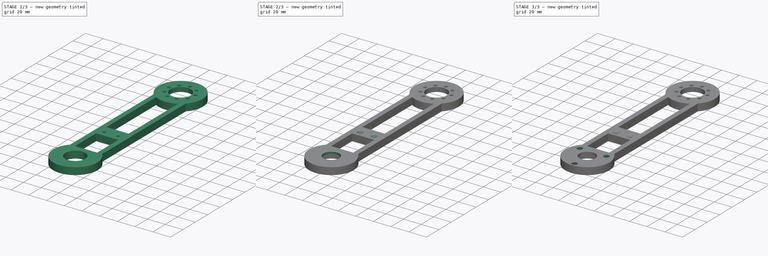
[diagram: build sequence overview — one tinted view per stage of 3, left to right]
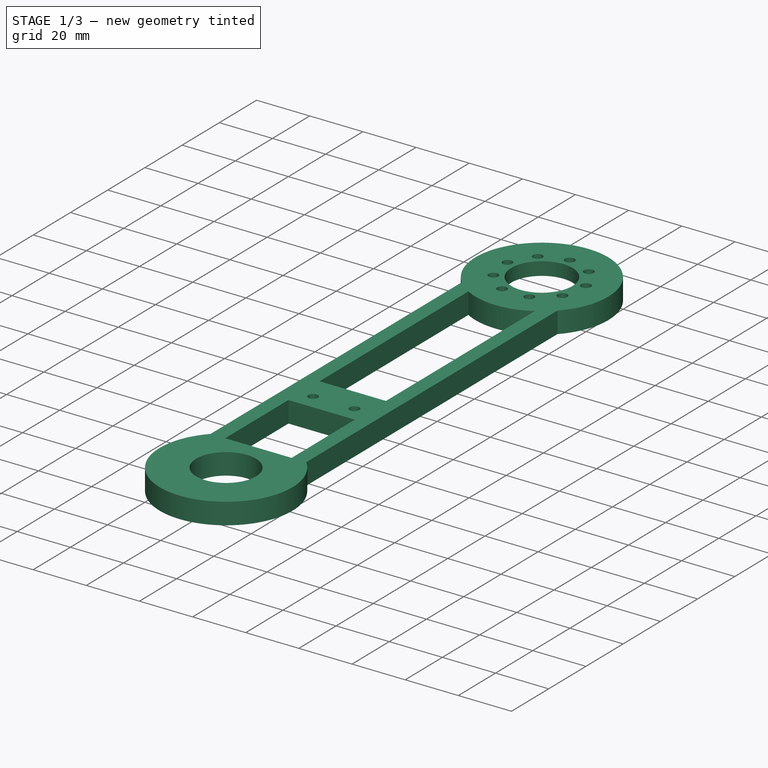
[diagram: stage 1 of 3 — iso view after this stage's code; geometry added in this stage tinted green]
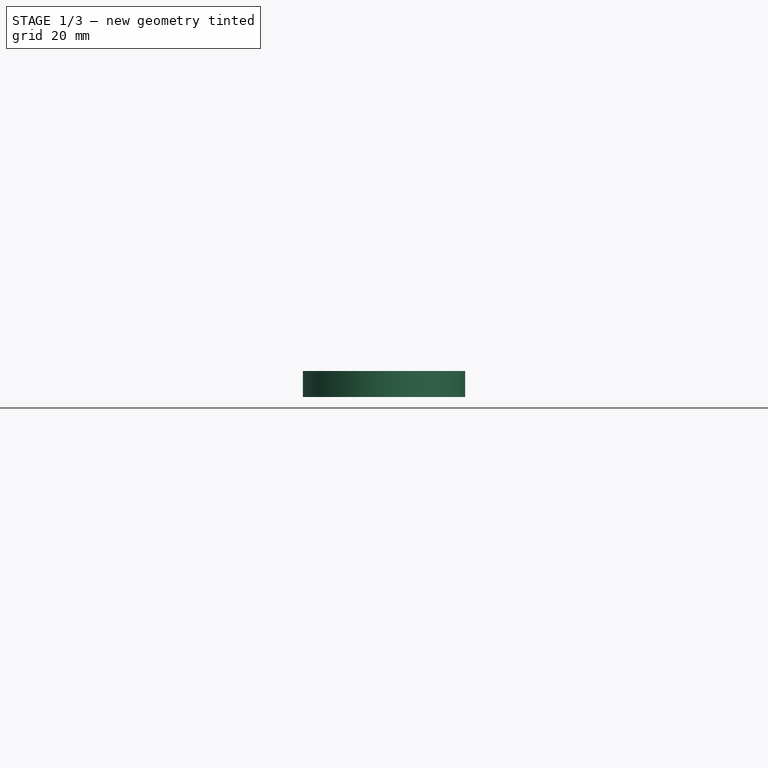
[diagram: stage 1 of 3 — front view after this stage's code; geometry added in this stage tinted green]
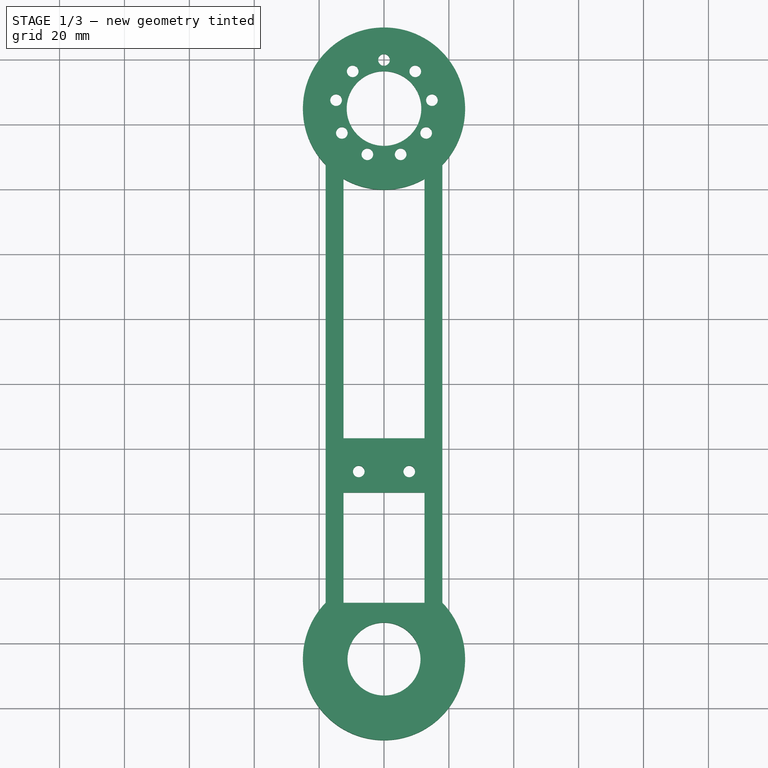
[diagram: stage 1 of 3 — top view after this stage's code; geometry added in this stage tinted green]
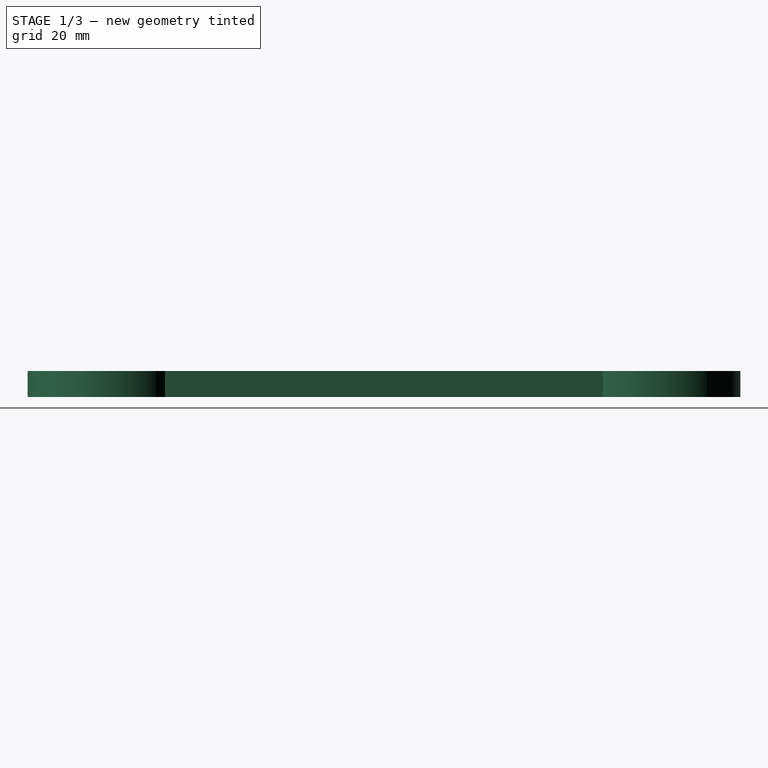
[diagram: stage 1 of 3 — right view after this stage's code; geometry added in this stage tinted green]
FCSTD DOCUMENT  (FreeCAD 1.0R38641 +678 (Git))
Label: pendulum_Arm
License: All rights reserved
LicenseURL: https://en.wikipedia.org/wiki/All_rights_reserved
objects: Sketcher::SketchObject×5, PartDesign::Pocket×3, PartDesign::CoordinateSystem×3, PartDesign::Pad×2, App::Part×1, PartDesign::Chamfer×1, PartDesign::Body×1
note: 32 computed .brp shape members not serialized (recipe doc carries the construction recipe); baked Part::Feature solids carry a one-line shape summary decoded from their .brp

FEATURE [App::Part] Part
  Origin = -> Origin
FEATURE [Sketcher::SketchObject] Sketch006
  ArcFitTolerance = 1e-06
  AttachmentSupport = -> [XY_Plane004]
  FullyConstrained = true
  MakeInternals = false
  MapMode = 5
  sketch-geometry (1):
    g0: Circle CenterX=0 CenterY=84.85 CenterZ=0 NormalX=0 NormalY=0 NormalZ=1 AngleXU=0 Radius=23
  constraints (3):
    c: PointOnObject(g0,g-2)
    c: DistanceY(g-1,g0) = 84.85
    c: Diameter(g0) = 46
FEATURE [Sketcher::SketchObject] Sketch007
  ArcFitTolerance = 1e-06
  AttachmentSupport = -> [XY_Plane004]
  FullyConstrained = true
  MakeInternals = false
  MapMode = 5
  sketch-geometry (33):
    g0: LineSegment StartX=-18 StartY=67.5 StartZ=0 EndX=-18 EndY=-67.5 EndZ=0
    g1: LineSegment StartX=18 StartY=-67.5 StartZ=0 EndX=18 EndY=67.5 EndZ=0
    g2: ArcOfCircle CenterX=0 CenterY=84.8494 CenterZ=0 NormalX=0 NormalY=0 NormalZ=1 AngleXU=0 Radius=25 StartAngle=5.51619 EndAngle=10.1918
    g3: Circle CenterX=0 CenterY=84.8494 CenterZ=0 NormalX=0 NormalY=0 NormalZ=1 AngleXU=0 Radius=11.5
    g4: Circle CenterX=0 CenterY=99.8494 CenterZ=0 NormalX=0 NormalY=0 NormalZ=1 AngleXU=0 Radius=1.8
    g5: Circle CenterX=9.64181 CenterY=96.34 CenterZ=0 NormalX=0 NormalY=0 NormalZ=1 AngleXU=0 Radius=1.8
    g6: Circle CenterX=14.7721 CenterY=87.4541 CenterZ=0 NormalX=0 NormalY=0 NormalZ=1 AngleXU=0 Radius=1.8
    g7: Circle CenterX=12.9904 CenterY=77.3494 CenterZ=0 NormalX=0 NormalY=0 NormalZ=1 AngleXU=0 Radius=1.8
    g8: Circle CenterX=5.1303 CenterY=70.754 CenterZ=0 NormalX=0 NormalY=0 NormalZ=1 AngleXU=0 Radius=1.8
    g9: Circle CenterX=-5.1303 CenterY=70.754 CenterZ=0 NormalX=0 NormalY=0 NormalZ=1 AngleXU=0 Radius=1.8
    g10: Circle CenterX=-12.9904 CenterY=77.3494 CenterZ=0 NormalX=0 NormalY=0 NormalZ=1 AngleXU=0 Radius=1.8
    g11: Circle CenterX=-14.7721 CenterY=87.4541 CenterZ=0 NormalX=0 NormalY=0 NormalZ=1 AngleXU=0 Radius=1.8
    g12: Circle CenterX=-9.64181 CenterY=96.34 CenterZ=0 NormalX=0 NormalY=0 NormalZ=1 AngleXU=0 Radius=1.8
    g13: LineSegment [constr] StartX=-9.64181 StartY=96.34 StartZ=0 EndX=0 EndY=84.8494 EndZ=0
    g14: LineSegment [constr] StartX=-14.7721 StartY=87.4541 StartZ=0 EndX=0 EndY=84.8494 EndZ=0
    g15: LineSegment [constr] StartX=-12.9904 StartY=77.3494 StartZ=0 EndX=0 EndY=84.8494 EndZ=0
    g16: LineSegment [constr] StartX=-5.1303 StartY=70.754 StartZ=0 EndX=0 EndY=84.8494 EndZ=0
    g17: LineSegment [constr] StartX=5.1303 StartY=70.754 StartZ=0 EndX=0 EndY=84.8494 EndZ=0
    g18: LineSegment [constr] StartX=12.9904 StartY=77.3494 StartZ=0 EndX=0 EndY=84.8494 EndZ=0
    g19: LineSegment [constr] StartX=14.7721 StartY=87.4541 StartZ=0 EndX=0 EndY=84.8494 EndZ=0
    g20: LineSegment [constr] StartX=9.64181 StartY=96.34 StartZ=0 EndX=0 EndY=84.8494 EndZ=0
    g21: Circle CenterX=-7.78 CenterY=-27 CenterZ=0 NormalX=0 NormalY=0 NormalZ=1 AngleXU=0 Radius=1.8
    g22: Circle CenterX=7.78 CenterY=-27 CenterZ=0 NormalX=0 NormalY=0 NormalZ=1 AngleXU=0 Radius=1.8
    g23: ArcOfCircle CenterX=0 CenterY=-84.8494 CenterZ=0 NormalX=0 NormalY=0 NormalZ=1 AngleXU=0 Radius=25 StartAngle=2.3746 EndAngle=7.05018
    g24: Circle CenterX=0 CenterY=-84.8494 CenterZ=0 NormalX=0 NormalY=0 NormalZ=1 AngleXU=0 Radius=11.25
    g25: LineSegment StartX=-12.5 StartY=63.1987 StartZ=0 EndX=-12.5 EndY=-16.8013 EndZ=0
    g26: LineSegment StartX=-12.5 StartY=-16.8013 StartZ=0 EndX=12.5 EndY=-16.8013 EndZ=0
    g27: LineSegment StartX=12.5 StartY=-16.8013 StartZ=0 EndX=12.5 EndY=63.1987 EndZ=0
    g28: LineSegment StartX=-12.5 StartY=-33.5 StartZ=0 EndX=-12.5 EndY=-67.5 EndZ=0
    g29: LineSegment StartX=-12.5 StartY=-67.5 StartZ=0 EndX=12.5 EndY=-67.5 EndZ=0
    g30: LineSegment StartX=12.5 StartY=-67.5 StartZ=0 EndX=12.5 EndY=-33.5 EndZ=0
    g31: LineSegment StartX=12.5 StartY=-33.5 StartZ=0 EndX=-12.5 EndY=-33.5 EndZ=0
    g32: ArcOfCircle CenterX=0 CenterY=84.8494 CenterZ=0 NormalX=0 NormalY=0 NormalZ=1 AngleXU=0 Radius=25 StartAngle=4.18879 EndAngle=5.23599
  constraints (88):
    c: Vertical(g0)
    c: Vertical(g1)
    c: Symmetric(g0,g1,g-1)
    c: DistanceX(g0,g1) = 36
    c: DistanceY(g1,g1) = 135
    c: PointOnObject(g2,g-2)
    c: Diameter(g2) = 50
    c: Coincident(g2,g0)
    c: Coincident(g2,g1)
    c: Coincident(g3,g2)
    c: Diameter(g3) = 23
    c: PointOnObject(g4,g-2)
    c: Coincident(g13,g12)
    c: Coincident(g13,g2)
    c: Coincident(g14,g11)
    c: Coincident(g14,g2)
    c: Coincident(g15,g10)
    c: Coincident(g15,g2)
    c: Coincident(g16,g9)
    c: Coincident(g16,g2)
    c: Coincident(g17,g8)
    c: Coincident(g17,g2)
    c: Coincident(g18,g7)
    c: Coincident(g18,g2)
    c: Coincident(g19,g6)
    c: Coincident(g19,g2)
    c: Coincident(g20,g5)
    c: Coincident(g20,g2)
    c: Equal(g4,g5)
    c: Equal(g5,g6)
    c: Equal(g6,g7)
    c: Equal(g7,g8)
    c: Equal(g8,g9)
    c: Equal(g9,g10)
    c: Equal(g10,g11)
    c: Equal(g11,g12)
    c: Equal(g13,g14)
    c: Equal(g14,g15)
    c: Equal(g15,g16)
    c: Equal(g16,g17)
    c: Equal(g17,g18)
    c: Equal(g18,g19)
    c: Equal(g19,g20)
    c: DistanceY(g2,g4) = 15
    c: Distance(g13) = 15
    c: Diameter(g4) = 3.6
    c: Angle(g-2,g20) = 2.44346
    c: Angle(g19,g20) = 0.698132
    c: Angle(g18,g19) = 0.698132
    c: Angle(g17,g18) = 0.698132
    c: Angle(g16,g17) = 0.698132
    c: Angle(g15,g16) = 0.698132
    c: Angle(g14,g15) = 0.698132
    c: Angle(g13,g14) = 0.698132
    c: Equal(g22,g21)
    c: Diameter(g21) = 3.6
    c: DistanceX(g21,g22) = 15.56
    c: Symmetric(g21,g22,g-2)
    c: DistanceY(g22,g-1) = 27
    c: PointOnObject(g23,g-2)
    c: Diameter(g23) = 50
    c: Coincident(g23,g1)
    c: Coincident(g23,g0)
    c: Coincident(g24,g23)
    c: Diameter(g24) = 22.5
    c: Vertical(g25)
    c: Vertical(g27)
    c: Horizontal(g26)
    c: Coincident(g28,g29)
    c: Coincident(g29,g30)
    c: Coincident(g30,g31)
    c: Coincident(g31,g28)
    c: Vertical(g28)
    c: Vertical(g30)
    c: Horizontal(g29)
    c: Symmetric(g27,g25,g-2)
    c: DistanceY(g25,g25) = 80
    c: DistanceX(g25,g27) = 25
    c: PointOnObject(g1,g29)
    c: Symmetric(g28,g30,g-2)
    c: DistanceX(g31,g31) = 25
    c: DistanceY(g28,g28) = 34
    c: Diameter(g32) = 50
    c: Coincident(g32,g25)
    c: Coincident(g32,g27)
    c: Coincident(g32,g2)
    c: Coincident(g26,g25)
    c: Coincident(g27,g26)
FEATURE [PartDesign::Pad] Pad004  label="Pad_Arm"
  Direction = (0,0,1)
  Length = 8
  Length2 = 10
  Profile = -> Sketch007
  ReferenceAxis = -> Sketch007 [N_Axis]
  Refine = true
  Suppressed = false
  Type = 0
FEATURE [PartDesign::Pocket] Pocket001  label="Pocket_Motor"
  BaseFeature = -> Pad004
  Direction = (0,0,-1)
  Length = 3
  Length2 = 5
  Profile = -> Sketch006
  ReferenceAxis = -> Sketch006 [N_Axis]
  Refine = true
  Reversed = true
  Suppressed = false
  Type = 0
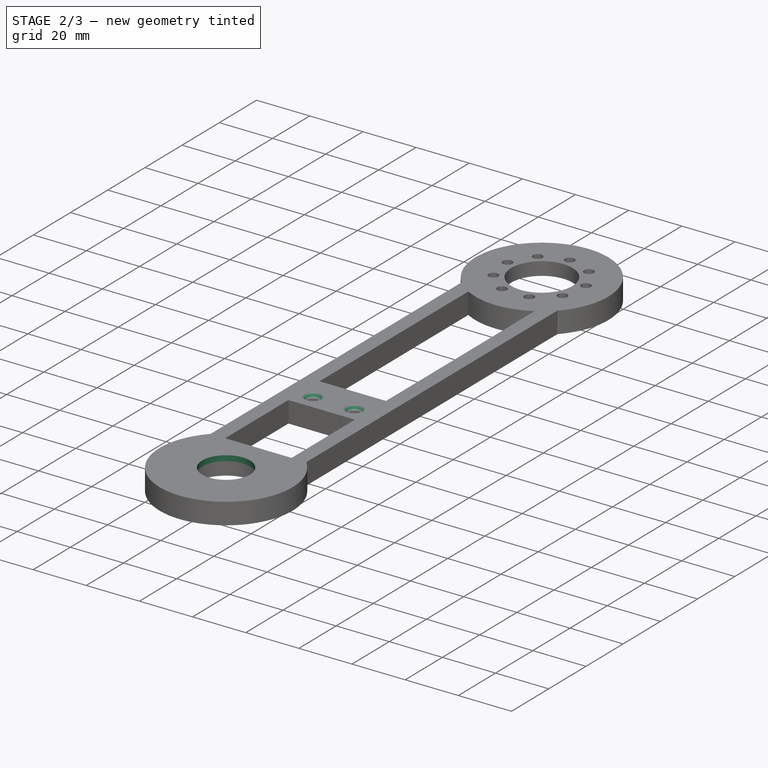
[diagram: stage 2 of 3 — iso view after this stage's code; geometry added in this stage tinted green]
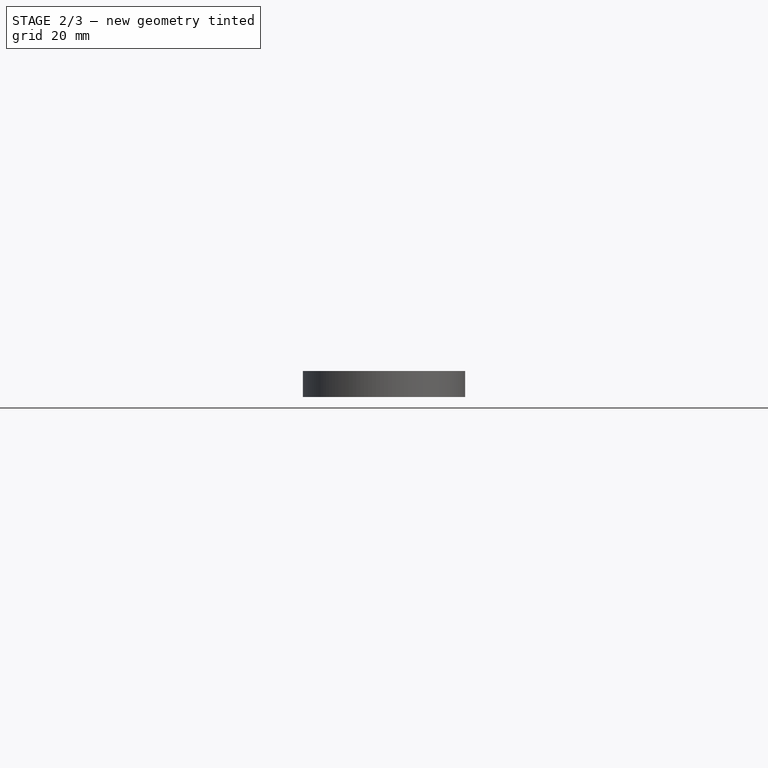
[diagram: stage 2 of 3 — front view after this stage's code; geometry added in this stage tinted green]
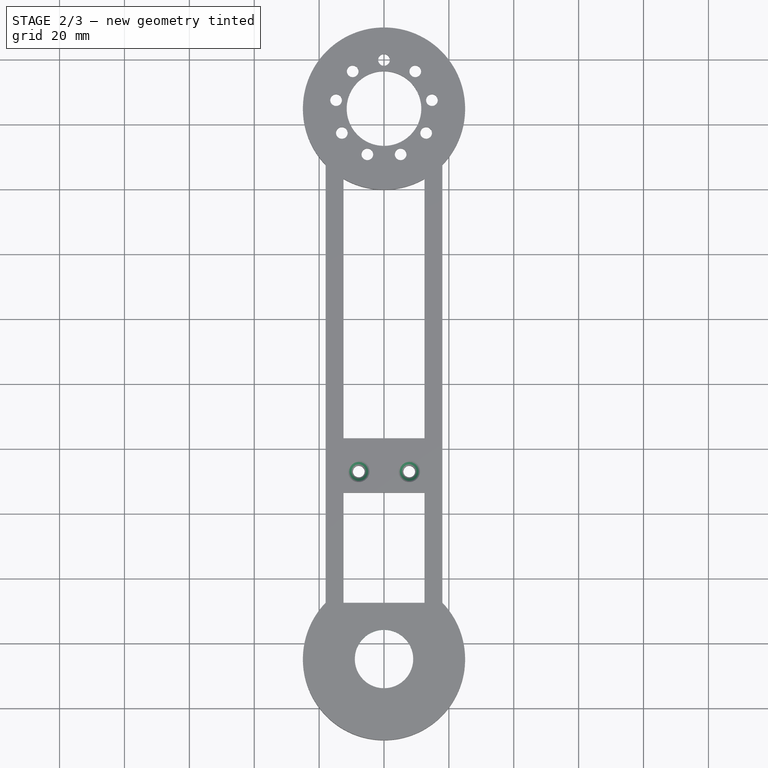
[diagram: stage 2 of 3 — top view after this stage's code; geometry added in this stage tinted green]
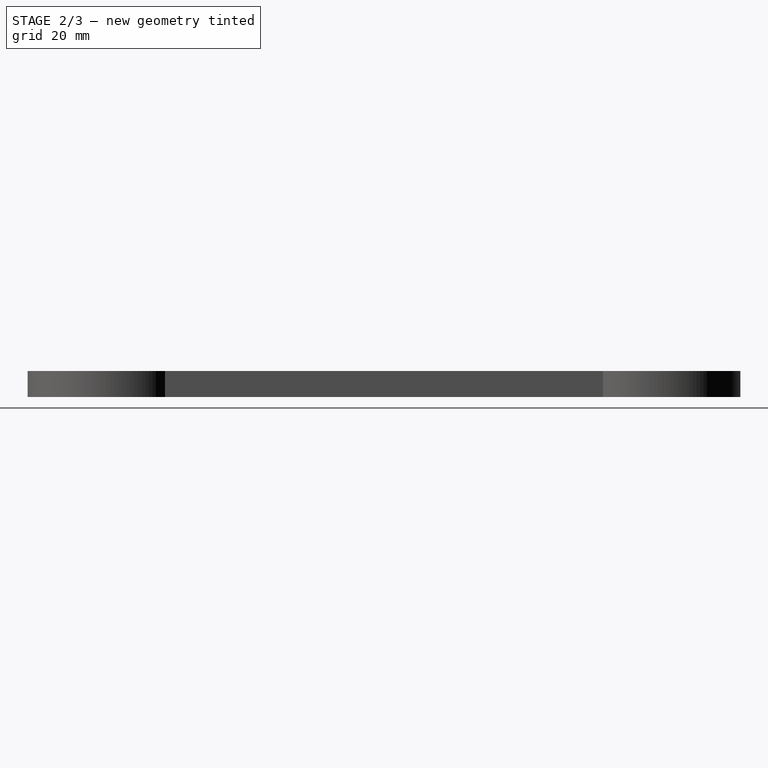
[diagram: stage 2 of 3 — right view after this stage's code; geometry added in this stage tinted green]
FEATURE [PartDesign::CoordinateSystem] Arm_Axis_Top
  AttacherType = Attacher::AttachEngine3D
  AttachmentOffset = pos=(0,0,0) rot=(0,0,-1;1.5708rad)
  AttachmentSupport = -> [Pocket001]
  MapMode = 11
  Placement = pos=(2e-16,99.8494,8) rot=(0,0,1;0rad)
FEATURE [PartDesign::CoordinateSystem] Arm_MPU6050_Right
  AttacherType = Attacher::AttachEngine3D
  AttachmentOffset = pos=(0,0,0) rot=(-1,0,0;1.5708rad)
  AttachmentSupport = -> [Pocket001]
  MapMode = 11
  Placement = pos=(-7.78,-27,0) rot=(-0.57735,-0.57735,0.57735;2.0944rad)
FEATURE [PartDesign::Chamfer] Chamfer002
  Angle = 45
  Base = -> Pocket001 [Edge41,Edge40]
  BaseFeature = -> Pocket001
  ChamferType = 0
  FlipDirection = false
  Refine = true
  Size = 1.5
  Size2 = 1
  SupportTransform = false
  Suppressed = false
  UseAllEdges = false
FEATURE [Sketcher::SketchObject] Sketch027
  ArcFitTolerance = 1e-06
  AttachmentSupport = -> [Chamfer002]
  ExternalGeometry = -> [Chamfer002]
  FullyConstrained = true
  MakeInternals = false
  MapMode = 5
  Placement = pos=(0,0,8) rot=(0,0,1;0rad)
  sketch-geometry (3):
    g0: ArcOfCircle CenterX=0 CenterY=-84.8494 CenterZ=0 NormalX=0 NormalY=0 NormalZ=1 AngleXU=0 Radius=25 StartAngle=2.3746 EndAngle=7.05018
    g1: LineSegment StartX=-18 StartY=-67.5 StartZ=0 EndX=18 EndY=-67.5 EndZ=0
    g2: Circle CenterX=0 CenterY=-84.8494 CenterZ=0 NormalX=0 NormalY=0 NormalZ=1 AngleXU=0 Radius=9
  constraints (7):
    c: Coincident(g0,g-3)
    c: Coincident(g1,g-3)
    c: Coincident(g0,g1)
    c: Coincident(g0,g1)
    c: Horizontal(g1)
    c: Coincident(g2,g0)
    c: Diameter(g2) = 18
FEATURE [PartDesign::Pad] Pad017  label="Pad_LockBearing"
  BaseFeature = -> Chamfer002
  Direction = (0,0,1)
  Length = 2
  Length2 = 10
  Profile = -> Sketch027
  ReferenceAxis = -> Sketch027 [N_Axis]
  Refine = true
  Reversed = true
  Suppressed = false
  Type = 0
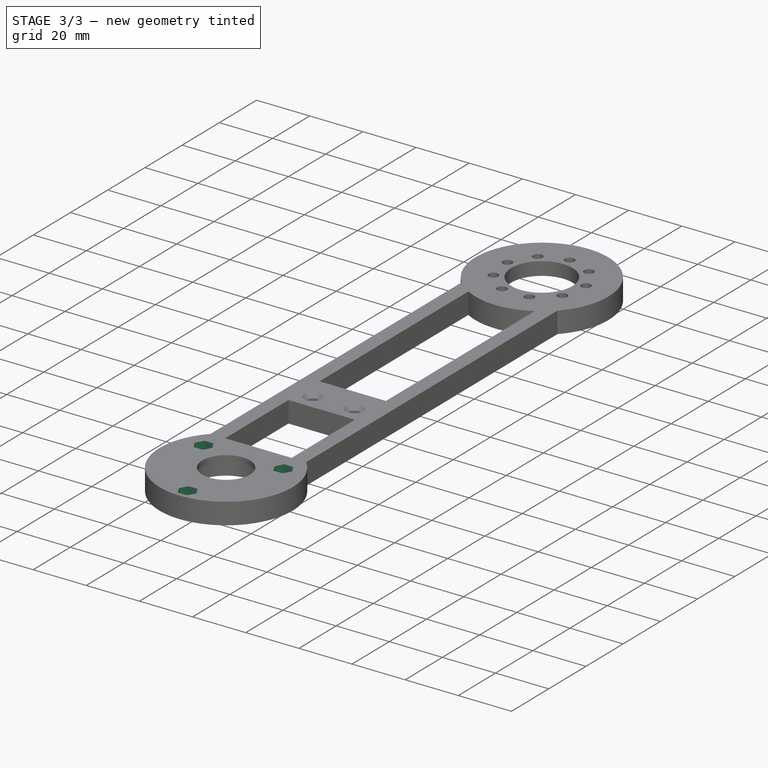
[diagram: stage 3 of 3 — iso view after this stage's code; geometry added in this stage tinted green]
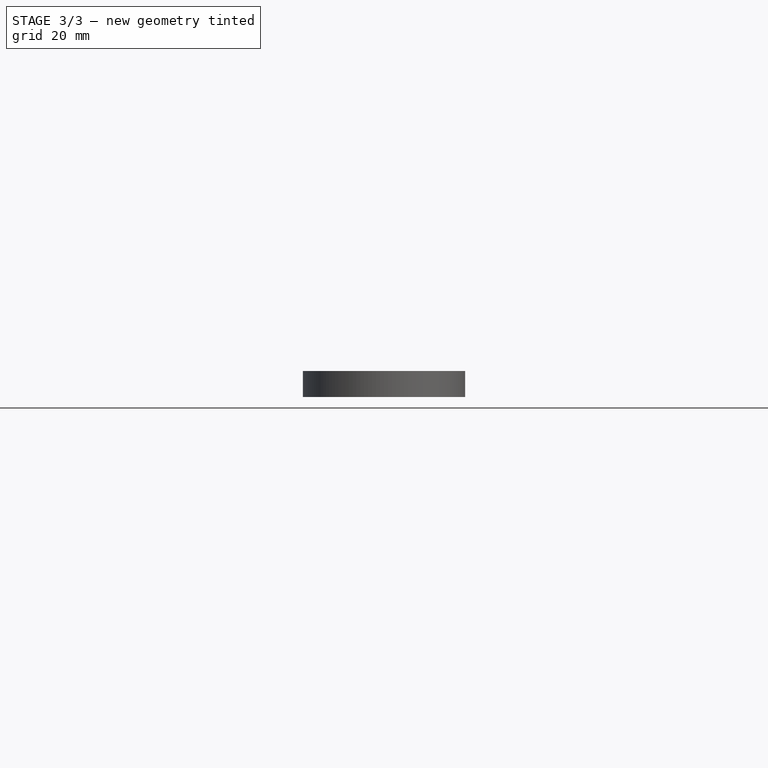
[diagram: stage 3 of 3 — front view after this stage's code; geometry added in this stage tinted green]
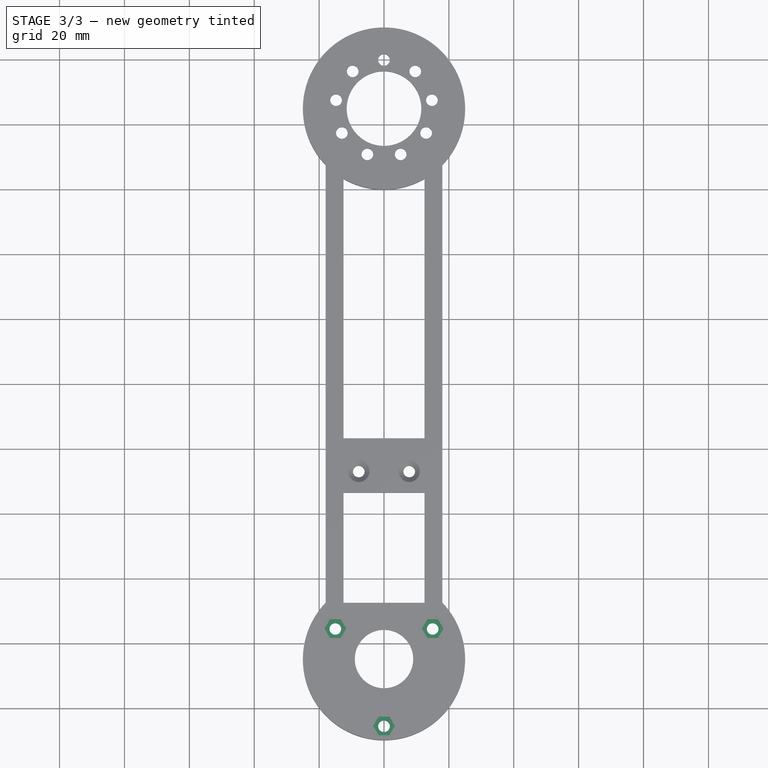
[diagram: stage 3 of 3 — top view after this stage's code; geometry added in this stage tinted green]
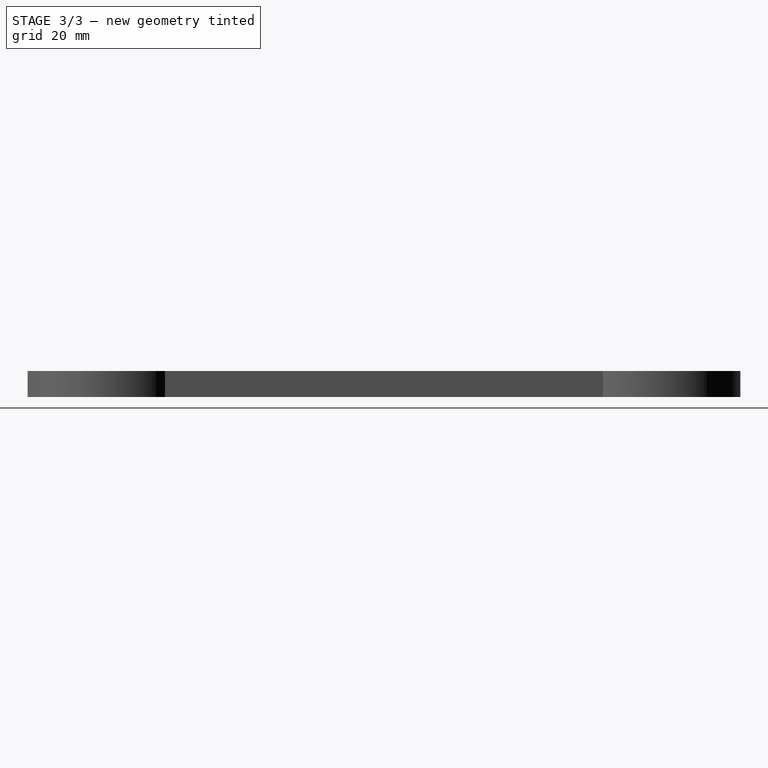
[diagram: stage 3 of 3 — right view after this stage's code; geometry added in this stage tinted green]
FEATURE [Sketcher::SketchObject] Sketch032
  ArcFitTolerance = 1e-06
  AttachmentSupport = -> [Pad017]
  ExternalGeometry = -> [Pad017]
  FullyConstrained = true
  MakeInternals = false
  MapMode = 5
  Placement = pos=(0,0,8) rot=(0,0,1;0rad)
  sketch-geometry (3):
    g0: Circle CenterX=-15 CenterY=-75.5 CenterZ=0 NormalX=0 NormalY=0 NormalZ=1 AngleXU=0 Radius=1.8
    g1: Circle CenterX=15 CenterY=-75.5 CenterZ=0 NormalX=0 NormalY=0 NormalZ=1 AngleXU=0 Radius=1.8
    g2: Circle CenterX=0 CenterY=-105.5 CenterZ=0 NormalX=0 NormalY=0 NormalZ=1 AngleXU=0 Radius=1.8
  constraints (8):
    c: PointOnObject(g2,g-2)
    c: Equal(g2,g1)
    c: Equal(g1,g0)
    c: Diameter(g0) = 3.6
    c: DistanceY(g0,g-3) = 8
    c: DistanceY(g2,g0) = 30
    c: Symmetric(g0,g1,g-2)
    c: DistanceX(g0,g1) = 30
FEATURE [PartDesign::Pocket] Pocket009
  BaseFeature = -> Pad017
  Direction = (0,0,-1)
  Length = 5
  Length2 = 5
  Profile = -> Sketch032
  ReferenceAxis = -> Sketch032 [N_Axis]
  Refine = true
  Suppressed = false
  Type = 1
FEATURE [Sketcher::SketchObject] Sketch033
  ArcFitTolerance = 1e-06
  AttachmentSupport = -> [Pocket009]
  ExternalGeometry = -> [Pocket009]
  FullyConstrained = true
  MakeInternals = false
  MapMode = 5
  Placement = pos=(0,0,8) rot=(0,0,1;0rad)
  sketch-geometry (21):
    g0: LineSegment StartX=-13.35 StartY=-78.3579 StartZ=0 EndX=-11.7 EndY=-75.5 EndZ=0
    g1: LineSegment StartX=-11.7 StartY=-75.5 StartZ=0 EndX=-13.35 EndY=-72.6421 EndZ=0
    g2: LineSegment StartX=-13.35 StartY=-72.6421 StartZ=0 EndX=-16.65 EndY=-72.6421 EndZ=0
    g3: LineSegment StartX=-16.65 StartY=-72.6421 StartZ=0 EndX=-18.3 EndY=-75.5 EndZ=0
    g4: LineSegment StartX=-18.3 StartY=-75.5 StartZ=0 EndX=-16.65 EndY=-78.3579 EndZ=0
    g5: LineSegment StartX=-16.65 StartY=-78.3579 StartZ=0 EndX=-13.35 EndY=-78.3579 EndZ=0
    g6: Circle [constr] CenterX=-15 CenterY=-75.5 CenterZ=0 NormalX=0 NormalY=0 NormalZ=1 AngleXU=0 Radius=3.3
    g7: LineSegment StartX=16.65 StartY=-72.6421 StartZ=0 EndX=13.35 EndY=-72.6421 EndZ=0
    g8: LineSegment StartX=13.35 StartY=-72.6421 StartZ=0 EndX=11.7 EndY=-75.5 EndZ=0
    g9: LineSegment StartX=11.7 StartY=-75.5 StartZ=0 EndX=13.35 EndY=-78.3579 EndZ=0
    g10: LineSegment StartX=13.35 StartY=-78.3579 StartZ=0 EndX=16.65 EndY=-78.3579 EndZ=0
    g11: LineSegment StartX=16.65 StartY=-78.3579 StartZ=0 EndX=18.3 EndY=-75.5 EndZ=0
    g12: LineSegment StartX=18.3 StartY=-75.5 StartZ=0 EndX=16.65 EndY=-72.6421 EndZ=0
    g13: Circle [constr] CenterX=15 CenterY=-75.5 CenterZ=0 NormalX=0 NormalY=0 NormalZ=1 AngleXU=0 Radius=3.3
    g14: LineSegment StartX=1.65 StartY=-102.642 StartZ=0 EndX=-1.65 EndY=-102.642 EndZ=0
    g15: LineSegment StartX=-1.65 StartY=-102.642 StartZ=0 EndX=-3.3 EndY=-105.5 EndZ=0
    g16: LineSegment StartX=-3.3 StartY=-105.5 StartZ=0 EndX=-1.65 EndY=-108.358 EndZ=0
    g17: LineSegment StartX=-1.65 StartY=-108.358 StartZ=0 EndX=1.65 EndY=-108.358 EndZ=0
    g18: LineSegment StartX=1.65 StartY=-108.358 StartZ=0 EndX=3.3 EndY=-105.5 EndZ=0
    g19: LineSegment StartX=3.3 StartY=-105.5 StartZ=0 EndX=1.65 EndY=-102.642 EndZ=0
    g20: Circle [constr] CenterX=0 CenterY=-105.5 CenterZ=0 NormalX=0 NormalY=0 NormalZ=1 AngleXU=0 Radius=3.3
  constraints (48):
    c: Coincident(g0,g1)
    c: Coincident(g1,g2)
    c: Coincident(g2,g3)
    c: Coincident(g3,g4)
    c: Coincident(g4,g5)
    c: Coincident(g5,g0)
    c: Equal(g0, g1-g5) x5
    c: PointOnObject(g0,g6)
    c: PointOnObject(g1,g6)
    c: PointOnObject(g2,g6)
    c: PointOnObject(g3,g6)
    c: PointOnObject(g4,g6)
    c: PointOnObject(g5,g6)
    c: Coincident(g6,g-3)
    c: Coincident(g7,g8)
    c: Coincident(g8,g9)
    c: Coincident(g9,g10)
    c: Coincident(g10,g11)
    c: Coincident(g11,g12)
    c: Coincident(g12,g7)
    c: Equal(g7, g8-g12) x5
    c: PointOnObject(g7,g13)
    c: PointOnObject(g8,g13)
    c: PointOnObject(g9,g13)
    c: PointOnObject(g10,g13)
    c: PointOnObject(g11,g13)
    c: PointOnObject(g12,g13)
    c: Coincident(g13,g-4)
    c: Coincident(g14,g15)
    c: Coincident(g15,g16)
    c: Coincident(g16,g17)
    c: Coincident(g17,g18)
    c: Coincident(g18,g19)
    c: Coincident(g19,g14)
    c: Equal(g14, g15-g19) x5
    c: PointOnObject(g14,g20)
    c: PointOnObject(g15,g20)
    c: PointOnObject(g16,g20)
    c: PointOnObject(g17,g20)
    c: PointOnObject(g18,g20)
    c: PointOnObject(g19,g20)
    c: Coincident(g20,g-5)
    c: Equal(g13,g6)
    c: Equal(g6,g20)
    c: Diameter(g13) = 6.6
    c: Horizontal(g2)
    c: Horizontal(g7)
    c: Horizontal(g14)
FEATURE [PartDesign::Pocket] Pocket010
  BaseFeature = -> Pocket009
  Direction = (0,0,-1)
  Length = 3
  Length2 = 5
  Profile = -> Sketch033
  ReferenceAxis = -> Sketch033 [N_Axis]
  Refine = true
  Suppressed = false
  Type = 0
FEATURE [PartDesign::CoordinateSystem] Arm_Axis_Bottom
  AttacherType = Attacher::AttachEngine3D
  AttachmentSupport = -> [Pocket010]
  MapMode = 45
  Placement = pos=(4.26e-14,-84.8494,8) rot=(0,0,1;0rad)
FEATURE [PartDesign::Body] Body003  label="Body_Arm"
  AllowCompound = false
  Group = -> [Sketch007,Pad004,Sketch006,Pocket001,Arm_Axis_Top,Arm_MPU6050_Right,Chamfer002,Sketch027,Pad017,Sketch032,Pocket009,Sketch033,Pocket010,Arm_Axis_Bottom]
  Origin = -> Origin004
  Tip = -> Pocket010
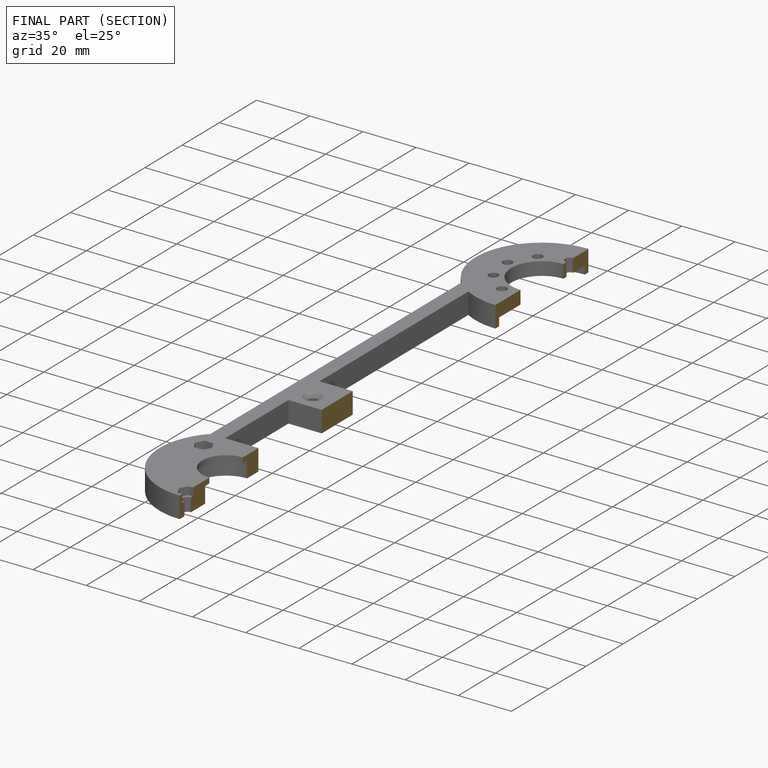
[diagram: finished part — half-section view (interior)]
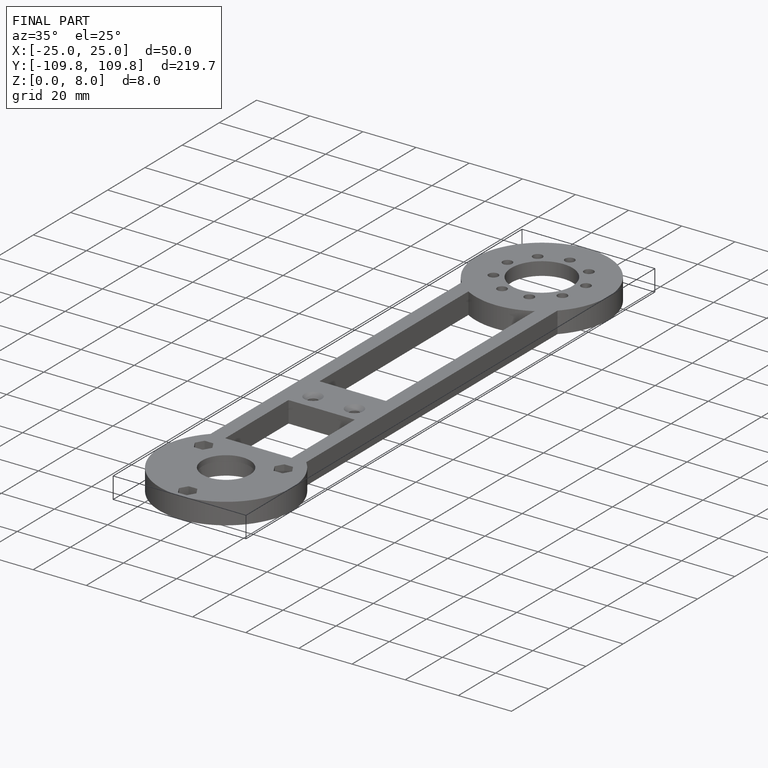
[diagram: finished part — iso view with bounding-box wireframe]
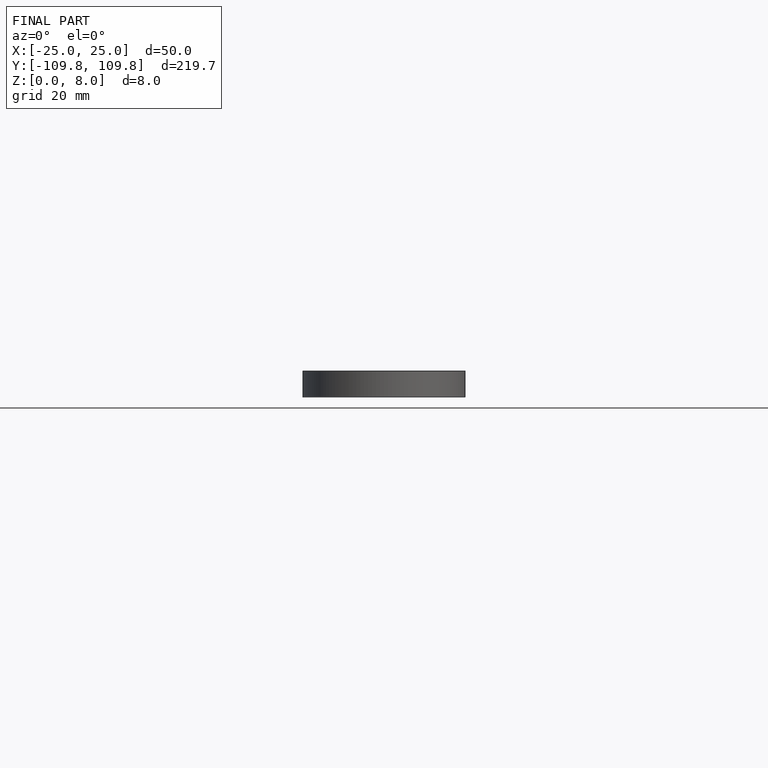
[diagram: finished part — front view with bounding-box wireframe]
